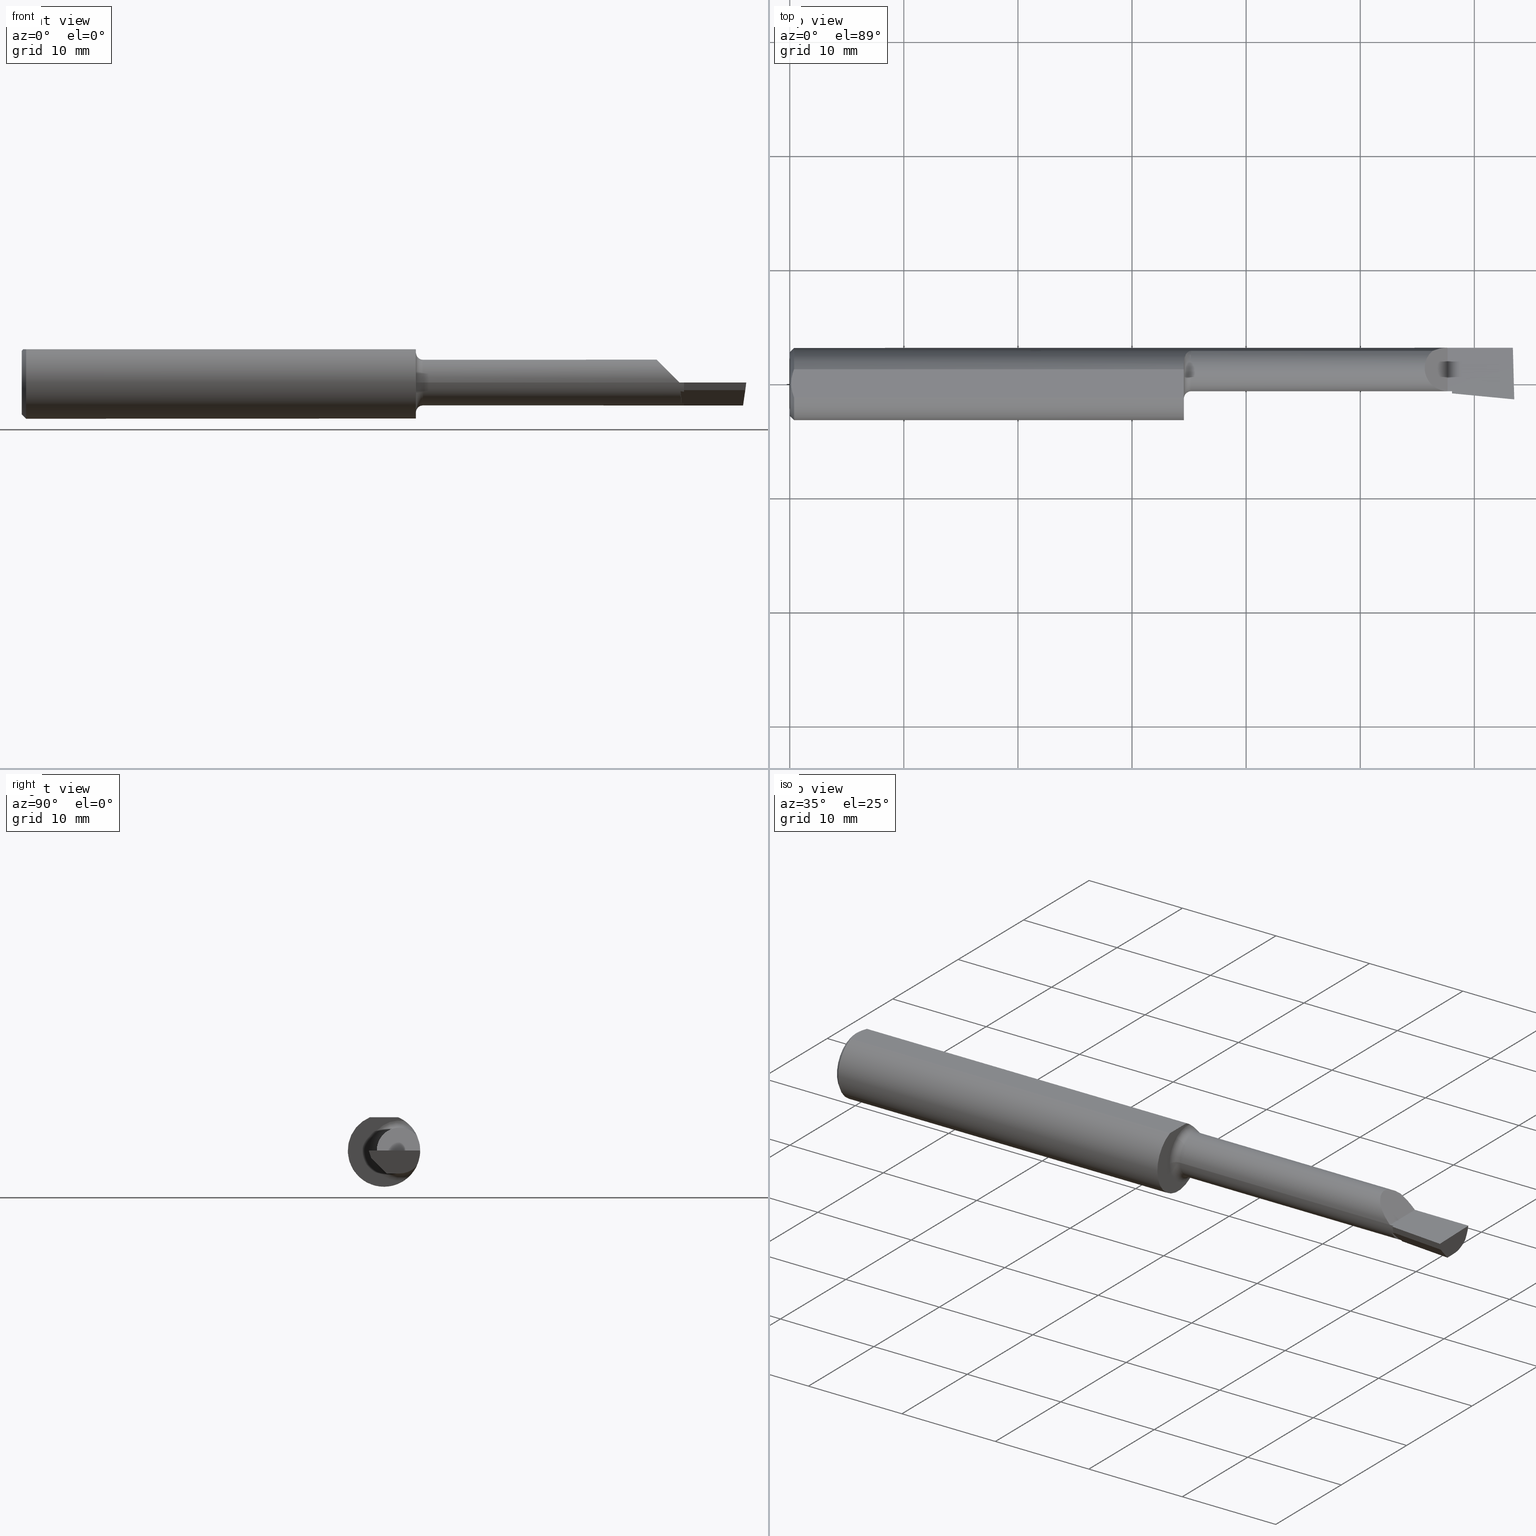
[diagram: canonical four-view strip — front | top / right | iso, engineering-drawing reading convention]
A machine part, canonical four-view strip (front | top / right | iso — engineering-drawing reading convention). The complete STEP part file that produces these views, byte-faithful:
ISO-10303-21;
HEADER;
FILE_DESCRIPTION (( 'STEP AP203' ),
    '1' );
FILE_NAME ('211944-LHB1801100.STEP',
    '2024-08-23T17:10:07',
    ( '' ),
    ( '' ),
    'SwSTEP 2.0',
    'SolidWorks 2024',
    '' );
FILE_SCHEMA (( 'CONFIG_CONTROL_DESIGN' ));
ENDSEC;

DATA;
#1 = CARTESIAN_POINT ( 'NONE',  ( 4.111069666048746882E-31, 0.1248499999999999888, 9.802154982235641300E-16 ) ) ;
#2 = VERTEX_POINT ( 'NONE', #618 ) ;
#3 = AXIS2_PLACEMENT_3D ( 'NONE', #153, #365, #449 ) ;
#4 = EDGE_CURVE ( 'NONE', #286, #134, #345, .T. ) ;
#5 = CARTESIAN_POINT ( 'NONE',  ( 2.487758143022276158, 0.05399999999999998551, -0.07915000000000001201 ) ) ;
#6 = ADVANCED_FACE ( 'NONE', ( #511 ), #148, .F. ) ;
#7 = VERTEX_POINT ( 'NONE', #674 ) ;
#8 = CARTESIAN_POINT ( 'NONE',  ( -2.702822108727469846E-19, -0.02515000000000001262, 9.802154982235641300E-16 ) ) ;
#9 = VECTOR ( 'NONE', #151, 39.37007874015748143 ) ;
#10 = FACE_OUTER_BOUND ( 'NONE', #567, .T. ) ;
#11 = ORIENTED_EDGE ( 'NONE', *, *, #61, .T. ) ;
#12 = DIRECTION ( 'NONE',  ( -0.000000000000000000, 1.000000000000000000, -0.000000000000000000 ) ) ;
#13 = APPROVAL_PERSON_ORGANIZATION ( #473, #537, #432 ) ;
#14 = DIRECTION ( 'NONE',  ( -1.000000000000000000, 3.414809992080329023E-18, -0.000000000000000000 ) ) ;
#15 = VERTEX_POINT ( 'NONE', #556 ) ;
#16 = VERTEX_POINT ( 'NONE', #621 ) ;
#17 = DIRECTION ( 'NONE',  ( 0.09140971883575743639, 0.9493262270931230873, 0.3007057995042730081 ) ) ;
#18 = B_SPLINE_CURVE_WITH_KNOTS ( 'NONE', 3,
 ( #198, #409, #506, #413, #630, #292, #360, #243, #140, #91, #249, #573, #352, #27 ),
 .UNSPECIFIED., .F., .F.,
 ( 4, 2, 2, 2, 2, 2, 4 ),
 ( 6.218642020841400790E-05, 0.0005341583913332120011, 0.001006130362458009832, 0.001478102333582808747, 0.001714088319145203433, 0.001832081311926394163, 0.001950074304707585110 ),
 .UNSPECIFIED. ) ;
#19 = DIRECTION ( 'NONE',  ( -1.000000000000000000, 3.414809992080329023E-18, -0.000000000000000000 ) ) ;
#20 = CARTESIAN_POINT ( 'NONE',  ( 2.273959837147569552, -0.01141125714284146192, -0.04927684878934050772 ) ) ;
#21 = ORIENTED_EDGE ( 'NONE', *, *, #661, .T. ) ;
#22 = CARTESIAN_POINT ( 'NONE',  ( 2.285000000000000142, -0.04621187679337921544, -0.003716002006967718003 ) ) ;
#23 = LINE ( 'NONE', #191, #422 ) ;
#24 = VECTOR ( 'NONE', #313, 39.37007874015748143 ) ;
#25 = ORIENTED_EDGE ( 'NONE', *, *, #486, .T. ) ;
#26 = APPROVAL ( #485, 'UNSPECIFIED' ) ;
#27 = CARTESIAN_POINT ( 'NONE',  ( 1.385000000000000009, 0.1133222222222218939, 0.05239843939104803922 ) ) ;
#28 = EDGE_CURVE ( 'NONE', #681, #673, #18, .T. ) ;
#29 = CARTESIAN_POINT ( 'NONE',  ( 2.487766922320267415, 0.05367228391204859755, -0.07915000000000001201 ) ) ;
#30 = ORIENTED_EDGE ( 'NONE', *, *, #580, .T. ) ;
#31 = CARTESIAN_POINT ( 'NONE',  ( 1.385000000000000009, 0.05399999999999999939, 0.000000000000000000 ) ) ;
#32 = DIRECTION ( 'NONE',  ( -3.414809992080329408E-18, -1.000000000000000000, 1.432187289346423802E-33 ) ) ;
#33 = CARTESIAN_POINT ( 'NONE',  ( 1.360000000000000320, 0.05399999999999999245, 0.000000000000000000 ) ) ;
#34 = EDGE_CURVE ( 'NONE', #436, #359, #564, .T. ) ;
#35 = ORIENTED_EDGE ( 'NONE', *, *, #502, .F. ) ;
#36 = CARTESIAN_POINT ( 'NONE',  ( 2.285000000000000142, -0.02515000000000000221, 0.000000000000000000 ) ) ;
#37 = VECTOR ( 'NONE', #503, 39.37007874015748854 ) ;
#38 = CARTESIAN_POINT ( 'NONE',  ( 1.385000000000000009, 0.1133222222222218939, 0.05239843939104803922 ) ) ;
#39 = CARTESIAN_POINT ( 'NONE',  ( 2.495569187478606121, 0.007984252577679214202, -0.07914999999999999813 ) ) ;
#40 = ADVANCED_FACE ( 'NONE', ( #246 ), #185, .T. ) ;
#41 = ORIENTED_EDGE ( 'NONE', *, *, #650, .T. ) ;
#42 = DIRECTION ( 'NONE',  ( 3.414809992080329023E-18, 1.000000000000000000, 0.000000000000000000 ) ) ;
#43 =( CONVERSION_BASED_UNIT ( 'INCH', #410 ) LENGTH_UNIT ( ) NAMED_UNIT ( #164 ) );
#44 = CARTESIAN_POINT ( 'NONE',  ( 0.005000000000000195260, 0.008410227287019752737, 0.1148500000000000215 ) ) ;
#45 = ADVANCED_FACE ( 'NONE', ( #672 ), #419, .F. ) ;
#46 = VECTOR ( 'NONE', #646, 39.37007874015748143 ) ;
#47 = CARTESIAN_POINT ( 'NONE',  ( 2.450892313306104686, -0.05443593003221099125, -0.4150509775379229160 ) ) ;
#48 = APPROVAL_ROLE ( '' ) ;
#49 = CARTESIAN_POINT ( 'NONE',  ( 2.500000000000000000, 0.05399999999999998551, -0.07915000000000001201 ) ) ;
#50 = DIRECTION ( 'NONE',  ( 0.000000000000000000, 1.000000000000000000, -4.882484975808304553E-17 ) ) ;
#51 = PERSON_AND_ORGANIZATION_ROLE ( 'creator' ) ;
#52 = CARTESIAN_POINT ( 'NONE',  ( 2.285000000000000142, -0.04244785463752932114, 0.000000000000000000 ) ) ;
#53 = PERSON_AND_ORGANIZATION_ROLE ( 'classification_officer' ) ;
#54 =( BOUNDED_CURVE ( )  B_SPLINE_CURVE ( 3, ( #335, #487, #657, #386 ),
 .UNSPECIFIED., .F., .T. ) 
 B_SPLINE_CURVE_WITH_KNOTS ( ( 4, 4 ),
 ( 2.748591085287169111, 2.776193934836911570 ),
 .UNSPECIFIED. ) 
 CURVE ( )  GEOMETRIC_REPRESENTATION_ITEM ( )  RATIONAL_B_SPLINE_CURVE ( ( 1.000000000000000000, 0.9999365078992319411, 0.9999365078992319411, 1.000000000000000000 ) ) 
 REPRESENTATION_ITEM ( '' )  );
#55 = EDGE_CURVE ( 'NONE', #330, #458, #589, .T. ) ;
#56 = CARTESIAN_POINT ( 'NONE',  ( 0.01499999999999999424, 0.000000000000000000, 0.000000000000000000 ) ) ;
#57 =( BOUNDED_CURVE ( )  B_SPLINE_CURVE ( 3, ( #155, #366, #581, #173 ),
 .UNSPECIFIED., .F., .F. ) 
 B_SPLINE_CURVE_WITH_KNOTS ( ( 4, 4 ),
 ( 5.658406471906769042, 6.505699533271600110 ),
 .UNSPECIFIED. ) 
 CURVE ( )  GEOMETRIC_REPRESENTATION_ITEM ( )  RATIONAL_B_SPLINE_CURVE ( ( 1.000000000000000000, 0.9410639745696128822, 0.9410639745696128822, 1.000000000000000000 ) ) 
 REPRESENTATION_ITEM ( '' )  );
#58 = AXIS2_PLACEMENT_3D ( 'NONE', #396, #613, #676 ) ;
#59 = CARTESIAN_POINT ( 'NONE',  ( 1.834999999999999964, 0.1133222222222221853, 0.05239843939104762288 ) ) ;
#60 = EDGE_LOOP ( 'NONE', ( #649, #169, #276, #544 ) ) ;
#61 = EDGE_CURVE ( 'NONE', #130, #681, #597, .T. ) ;
#62 = DIRECTION ( 'NONE',  ( 1.000000000000000000, -3.414809992080329023E-18, 0.000000000000000000 ) ) ;
#63 = ORIENTED_EDGE ( 'NONE', *, *, #687, .T. ) ;
#64 = DIRECTION ( 'NONE',  ( 1.000000000000000000, -3.414809992080329023E-18, 0.000000000000000000 ) ) ;
#65 = MANIFOLD_SOLID_BREP ( 'Extrude7', #372 ) ;
#66 = EDGE_LOOP ( 'NONE', ( #404, #118, #633, #629, #343 ) ) ;
#67 = FACE_OUTER_BOUND ( 'NONE', #384, .T. ) ;
#68 = VECTOR ( 'NONE', #601, 39.37007874015748143 ) ;
#69 = VECTOR ( 'NONE', #448, 39.37007874015748854 ) ;
#70 = CARTESIAN_POINT ( 'NONE',  ( 2.272839991865825748, -0.02304129506207100789, -0.02600000000000006126 ) ) ;
#71 = ORIENTED_EDGE ( 'NONE', *, *, #4, .F. ) ;
#72 = LOCAL_TIME ( 10, 10, 7.000000000000000000, #322 ) ;
#73 = CARTESIAN_POINT ( 'NONE',  ( 2.285000000000000142, 0.05399999999999998551, -0.07914999999999999813 ) ) ;
#74 = ORIENTED_EDGE ( 'NONE', *, *, #277, .F. ) ;
#75 = AXIS2_PLACEMENT_3D ( 'NONE', #390, #379, #117 ) ;
#76 = ORIENTED_EDGE ( 'NONE', *, *, #356, .F. ) ;
#77 = CARTESIAN_POINT ( 'NONE',  ( 1.366709462345916393, 0.1014961360546397240, -0.07295290821911747103 ) ) ;
#78 = DIRECTION ( 'NONE',  ( -0.7071067811865432429, 0.000000000000000000, -0.7071067811865517916 ) ) ;
#79 = PRODUCT_RELATED_PRODUCT_CATEGORY ( 'detail', '', ( #219 ) ) ;
#80 = ORIENTED_EDGE ( 'NONE', *, *, #176, .F. ) ;
#81 = CIRCLE ( 'NONE', #263, 0.1098499999999996424 ) ;
#82 = FACE_OUTER_BOUND ( 'NONE', #444, .T. ) ;
#83 = MECHANICAL_CONTEXT ( 'NONE', #165, 'mechanical' ) ;
#84 = ORIENTED_EDGE ( 'NONE', *, *, #85, .T. ) ;
#85 = EDGE_CURVE ( 'NONE', #178, #340, #532, .T. ) ;
#86 = APPROVAL_STATUS ( 'not_yet_approved' ) ;
#87 = VERTEX_POINT ( 'NONE', #36 ) ;
#88 = DIRECTION ( 'NONE',  ( -3.414809992080329408E-18, -1.000000000000000000, 0.000000000000000000 ) ) ;
#89 = CARTESIAN_POINT ( 'NONE',  ( 0.01499999999999999424, 1.528971528735470422E-17, 0.1248500000000000026 ) ) ;
#90 = ORIENTED_EDGE ( 'NONE', *, *, #502, .T. ) ;
#91 = CARTESIAN_POINT ( 'NONE',  ( 1.378003366130775342, 0.1118869025553485413, 0.05540929543234639210 ) ) ;
#92 = APPLICATION_CONTEXT ( 'configuration controlled 3d designs of mechanical parts and assemblies' ) ;
#93 = CARTESIAN_POINT ( 'NONE',  ( 0.000000000000000000, 0.000000000000000000, 0.000000000000000000 ) ) ;
#94 = CIRCLE ( 'NONE', #183, 0.1041500000000001036 ) ;
#95 = B_SPLINE_CURVE_WITH_KNOTS ( 'NONE', 3,
 ( #696, #265, #369, #428, #468, #584 ),
 .UNSPECIFIED., .F., .F.,
 ( 4, 2, 4 ),
 ( 0.001029394377391489035, 0.001663875367397493060, 0.002298356357403497086 ),
 .UNSPECIFIED. ) ;
#96 = DIRECTION ( 'NONE',  ( 0.7071067811865390240, 0.000000000000000000, -0.7071067811865560104 ) ) ;
#97 = ORIENTED_EDGE ( 'NONE', *, *, #531, .T. ) ;
#98 = CARTESIAN_POINT ( 'NONE',  ( 2.285000000000000142, 0.05399999999999998551, -0.07915000000000001201 ) ) ;
#99 = CARTESIAN_POINT ( 'NONE',  ( 2.285000000000000142, 0.02126251053591694806, -0.07206232915739714529 ) ) ;
#100 = FACE_OUTER_BOUND ( 'NONE', #60, .T. ) ;
#101 = VECTOR ( 'NONE', #328, 39.37007874015748854 ) ;
#102 = CARTESIAN_POINT ( 'NONE',  ( 2.285000000000000142, 0.05399999999999999245, 0.000000000000000000 ) ) ;
#103 = ADVANCED_FACE ( 'NONE', ( #82 ), #297, .F. ) ;
#104 = PLANE ( 'NONE',  #350 ) ;
#105 = VECTOR ( 'NONE', #262, 39.37007874015748143 ) ;
#106 = CARTESIAN_POINT ( 'NONE',  ( 2.273197635668314120, -0.01932702215997963296, -0.02979715290342114728 ) ) ;
#107 = CC_DESIGN_APPROVAL ( #671, ( #317 ) ) ;
#108 = DATE_AND_TIME ( #213, #626 ) ;
#109 = ADVANCED_FACE ( 'NONE', ( #481 ), #424, .F. ) ;
#110 = FACE_OUTER_BOUND ( 'NONE', #438, .T. ) ;
#111 = COORDINATED_UNIVERSAL_TIME_OFFSET ( 8, 0, .BEHIND. ) ;
#112 = CARTESIAN_POINT ( 'NONE',  ( 0.01499999999999999424, 0.000000000000000000, 0.000000000000000000 ) ) ;
#113 = ORIENTED_EDGE ( 'NONE', *, *, #631, .F. ) ;
#114 = DATE_TIME_ROLE ( 'classification_date' ) ;
#115 = EDGE_CURVE ( 'NONE', #467, #134, #667, .T. ) ;
#116 = AXIS2_PLACEMENT_3D ( 'NONE', #47, #266, #592 ) ;
#117 = DIRECTION ( 'NONE',  ( 3.414809992080329023E-18, 1.000000000000000000, 0.000000000000000000 ) ) ;
#118 = ORIENTED_EDGE ( 'NONE', *, *, #137, .T. ) ;
#119 = EDGE_LOOP ( 'NONE', ( #550, #407, #500, #332 ) ) ;
#120 = VECTOR ( 'NONE', #570, 39.37007874015748143 ) ;
#121 = DIRECTION ( 'NONE',  ( 0.000000000000000000, 0.000000000000000000, 1.000000000000000000 ) ) ;
#122 = ORIENTED_EDGE ( 'NONE', *, *, #315, .F. ) ;
#123 = DIRECTION ( 'NONE',  ( 1.000000000000000000, 0.000000000000000000, 0.000000000000000000 ) ) ;
#124 = LINE ( 'NONE', #59, #433 ) ;
#125 = ORIENTED_EDGE ( 'NONE', *, *, #333, .T. ) ;
#126 = VECTOR ( 'NONE', #96, 39.37007874015748143 ) ;
#127 = DIRECTION ( 'NONE',  ( -1.000000000000000000, -0.000000000000000000, -0.000000000000000000 ) ) ;
#128 = EDGE_LOOP ( 'NONE', ( #516, #311, #74, #237, #391, #195, #172, #71 ) ) ;
#129 = FACE_OUTER_BOUND ( 'NONE', #119, .T. ) ;
#130 = VERTEX_POINT ( 'NONE', #371 ) ;
#131 = CARTESIAN_POINT ( 'NONE',  ( 1.378018389903473695, 0.1118940578004063713, -0.05539504279880069076 ) ) ;
#132 = VECTOR ( 'NONE', #495, 39.37007874015748143 ) ;
#133 = FACE_OUTER_BOUND ( 'NONE', #510, .T. ) ;
#134 = VERTEX_POINT ( 'NONE', #576 ) ;
#135 = CARTESIAN_POINT ( 'NONE',  ( 1.363310246323733432, 0.09402499227299722373, -0.08235832246780973309 ) ) ;
#136 = DIRECTION ( 'NONE',  ( 1.000000000000000000, 0.000000000000000000, 0.000000000000000000 ) ) ;
#137 = EDGE_CURVE ( 'NONE', #653, #130, #478, .T. ) ;
#138 = ORIENTED_EDGE ( 'NONE', *, *, #509, .T. ) ;
#139 = AXIS2_PLACEMENT_3D ( 'NONE', #463, #19, #88 ) ;
#140 = CARTESIAN_POINT ( 'NONE',  ( 1.374891482046761704, 0.1103130882036812976, 0.05851436580809191851 ) ) ;
#141 = APPLICATION_PROTOCOL_DEFINITION ( 'international standard', 'config_control_design', 1994, #92 ) ;
#142 = VERTEX_POINT ( 'NONE', #106 ) ;
#143 = CARTESIAN_POINT ( 'NONE',  ( 1.379195140613335591, 0.1123729516825155567, -0.05441079362540626740 ) ) ;
#144 = EDGE_CURVE ( 'NONE', #602, #359, #316, .T. ) ;
#145 = COORDINATED_UNIVERSAL_TIME_OFFSET ( 8, 0, .BEHIND. ) ;
#146 = CARTESIAN_POINT ( 'NONE',  ( 2.489336331022029114, 0.1133222222222221853, -0.05239843939104762288 ) ) ;
#147 = EDGE_LOOP ( 'NONE', ( #513, #378, #351, #113, #620, #663 ) ) ;
#148 = PLANE ( 'NONE',  #622 ) ;
#149 = CARTESIAN_POINT ( 'NONE',  ( 1.385000000000000009, -0.05015000000000010422, 0.000000000000000000 ) ) ;
#150 = VERTEX_POINT ( 'NONE', #375 ) ;
#151 = DIRECTION ( 'NONE',  ( 0.1199690778467076002, -0.3102690083707247415, 0.9430485474275742686 ) ) ;
#152 = DIRECTION ( 'NONE',  ( 0.7071067811865390240, 8.659560562355036396E-17, 0.7071067811865560104 ) ) ;
#153 = CARTESIAN_POINT ( 'NONE',  ( 2.500000000000000000, -0.2500000000000000555, -6.829619984160658046E-17 ) ) ;
#154 = VECTOR ( 'NONE', #12, 39.37007874015748143 ) ;
#155 = CARTESIAN_POINT ( 'NONE',  ( 2.489336331022029114, 0.1133222222222221853, -0.05239843939104762288 ) ) ;
#156 = DIRECTION ( 'NONE',  ( -3.414809992080329408E-18, -1.000000000000000000, 0.000000000000000000 ) ) ;
#157 = LINE ( 'NONE', #383, #68 ) ;
#158 = ADVANCED_FACE ( 'NONE', ( #308 ), #212, .F. ) ;
#159 = PERSON_AND_ORGANIZATION_ROLE ( 'design_supplier' ) ;
#160 = LOCAL_TIME ( 10, 10, 7.000000000000000000, #111 ) ;
#161 = DIRECTION ( 'NONE',  ( -3.414809992080329023E-18, -1.000000000000000000, 0.000000000000000000 ) ) ;
#162 = ADVANCED_FACE ( 'NONE', ( #694 ), #426, .T. ) ;
#163 = DATE_AND_TIME ( #210, #591 ) ;
#164 = DIMENSIONAL_EXPONENTS ( 1.000000000000000000, 0.000000000000000000, 0.000000000000000000, 0.000000000000000000, 0.000000000000000000, 0.000000000000000000, 0.000000000000000000 ) ;
#165 = APPLICATION_CONTEXT ( 'configuration controlled 3d designs of mechanical parts and assemblies' ) ;
#166 = CIRCLE ( 'NONE', #258, 0.07915000000000009528 ) ;
#167 = CARTESIAN_POINT ( 'NONE',  ( 1.360000000000000320, 0.000000000000000000, 0.000000000000000000 ) ) ;
#168 = EDGE_CURVE ( 'NONE', #563, #16, #95, .T. ) ;
#169 = ORIENTED_EDGE ( 'NONE', *, *, #144, .T. ) ;
#170 = DIRECTION ( 'NONE',  ( 0.000000000000000000, -1.000000000000000000, 0.000000000000000000 ) ) ;
#171 = CC_DESIGN_PERSON_AND_ORGANIZATION_ASSIGNMENT ( #216, #159, ( #465 ) ) ;
#172 = ORIENTED_EDGE ( 'NONE', *, *, #661, .F. ) ;
#173 = CARTESIAN_POINT ( 'NONE',  ( 2.487758143022276158, 0.05399999999999998551, -0.07915000000000001201 ) ) ;
#174 = ORIENTED_EDGE ( 'NONE', *, *, #115, .F. ) ;
#175 = CARTESIAN_POINT ( 'NONE',  ( 2.496692433244797282, -0.04459583357914748136, -0.02600000000000006820 ) ) ;
#176 = EDGE_CURVE ( 'NONE', #286, #467, #634, .T. ) ;
#177 = CARTESIAN_POINT ( 'NONE',  ( 2.492810633592928315, -0.01783304102662870705, -0.05273003064282317381 ) ) ;
#178 = VERTEX_POINT ( 'NONE', #205 ) ;
#179 = LINE ( 'NONE', #177, #46 ) ;
#180 = ORIENTED_EDGE ( 'NONE', *, *, #531, .F. ) ;
#181 = ADVANCED_FACE ( 'NONE', ( #644 ), #418, .F. ) ;
#182 = CARTESIAN_POINT ( 'NONE',  ( 0.01499999999999999077, -0.04895916665957456004, 0.1148500000000000215 ) ) ;
#183 = AXIS2_PLACEMENT_3D ( 'NONE', #33, #358, #305 ) ;
#184 = ORIENTED_EDGE ( 'NONE', *, *, #333, .F. ) ;
#185 = CYLINDRICAL_SURFACE ( 'NONE', #139, 0.07915000000000002589 ) ;
#186 = PLANE ( 'NONE',  #679 ) ;
#187 = EDGE_LOOP ( 'NONE', ( #431, #63, #227, #541, #204, #450, #605, #21, #30, #245, #41 ) ) ;
#188 = CARTESIAN_POINT ( 'NONE',  ( 2.270000000000000018, -0.02515000000000007160, 2.816687638038912303E-17 ) ) ;
#189 = ADVANCED_FACE ( 'NONE', ( #312 ), #104, .F. ) ;
#190 = AXIS2_PLACEMENT_3D ( 'NONE', #112, #430, #121 ) ;
#191 = CARTESIAN_POINT ( 'NONE',  ( -2.702822108731581707E-19, -0.02515000000000002997, 0.000000000000000000 ) ) ;
#192 = B_SPLINE_CURVE_WITH_KNOTS ( 'NONE', 3,
 ( #474, #44, #574, #680, #342, #289 ),
 .UNSPECIFIED., .F., .F.,
 ( 4, 2, 4 ),
 ( 0.002298356357403497086, 0.002932796277434359007, 0.003567236197465221362 ),
 .UNSPECIFIED. ) ;
#193 = ORIENTED_EDGE ( 'NONE', *, *, #315, .T. ) ;
#194 = CARTESIAN_POINT ( 'NONE',  ( 2.518780375369936486, -0.05495834446916381122, -7.617277714937992982E-17 ) ) ;
#195 = ORIENTED_EDGE ( 'NONE', *, *, #548, .F. ) ;
#196 = AXIS2_PLACEMENT_3D ( 'NONE', #640, #472, #156 ) ;
#197 = VECTOR ( 'NONE', #64, 39.37007874015748143 ) ;
#198 = CARTESIAN_POINT ( 'NONE',  ( 1.360000000000000320, 0.07089166666666647798, 0.1027710761704004605 ) ) ;
#199 = CARTESIAN_POINT ( 'NONE',  ( 2.495231497323687986, 0.1248499999999998639, -6.635442975774731131E-17 ) ) ;
#200 = ORIENTED_EDGE ( 'NONE', *, *, #687, .F. ) ;
#201 = CARTESIAN_POINT ( 'NONE',  ( 1.374878942730255460, 0.1103076286869486416, -0.05852540734030661079 ) ) ;
#202 = CIRCLE ( 'NONE', #285, 0.1098499999999996424 ) ;
#203 = CARTESIAN_POINT ( 'NONE',  ( 2.270000000000000018, -0.02515000000000007160, 2.816687638038912303E-17 ) ) ;
#204 = ORIENTED_EDGE ( 'NONE', *, *, #233, .T. ) ;
#205 = CARTESIAN_POINT ( 'NONE',  ( 1.385000000000000009, 0.1133222222222218800, -0.05239843939104806697 ) ) ;
#206 = LINE ( 'NONE', #304, #327 ) ;
#207 = LINE ( 'NONE', #475, #677 ) ;
#208 = CC_DESIGN_PERSON_AND_ORGANIZATION_ASSIGNMENT ( #645, #53, ( #425 ) ) ;
#209 = AXIS2_PLACEMENT_3D ( 'NONE', #52, #362, #42 ) ;
#210 = CALENDAR_DATE ( 2024, 23, 8 ) ;
#211 = PLANE ( 'NONE',  #392 ) ;
#212 = PLANE ( 'NONE',  #209 ) ;
#213 = CALENDAR_DATE ( 2024, 23, 8 ) ;
#214 = EDGE_CURVE ( 'NONE', #572, #248, #81, .T. ) ;
#215 = DIRECTION ( 'NONE',  ( 0.000000000000000000, -4.882484975808304553E-17, -1.000000000000000000 ) ) ;
#216 = PERSON_AND_ORGANIZATION ( #242, #353 ) ;
#217 = DIRECTION ( 'NONE',  ( 3.414809992080329023E-18, 1.000000000000000000, -4.882484975808304553E-17 ) ) ;
#218 = CIRCLE ( 'NONE', #484, 0.02499999999999986955 ) ;
#219 = PRODUCT ( '211944-LHB1801100', '211944-LHB1801100', '', ( #83 ) ) ;
#220 = FACE_OUTER_BOUND ( 'NONE', #147, .T. ) ;
#221 = VERTEX_POINT ( 'NONE', #526 ) ;
#222 = CONICAL_SURFACE ( 'NONE', #400, 0.1248500000000000026, 0.7853981633974602694 ) ;
#223 = CARTESIAN_POINT ( 'NONE',  ( 2.285000000000000142, -0.03335971367006557858, 0.002878732955684627087 ) ) ;
#224 = VERTEX_POINT ( 'NONE', #321 ) ;
#225 = CARTESIAN_POINT ( 'NONE',  ( 0.01499999999999999424, 0.000000000000000000, 0.000000000000000000 ) ) ;
#226 = DIRECTION ( 'NONE',  ( 0.9953961983671787417, -0.09584575252022421721, -0.000000000000000000 ) ) ;
#227 = ORIENTED_EDGE ( 'NONE', *, *, #364, .F. ) ;
#228 = ORIENTED_EDGE ( 'NONE', *, *, #168, .T. ) ;
#229 = EDGE_CURVE ( 'NONE', #241, #467, #207, .T. ) ;
#230 = CARTESIAN_POINT ( 'NONE',  ( 0.000000000000000000, 0.000000000000000000, -0.1098499999999996424 ) ) ;
#231 = CARTESIAN_POINT ( 'NONE',  ( 0.000000000000000000, 0.000000000000000000, 0.000000000000000000 ) ) ;
#232 = ORIENTED_EDGE ( 'NONE', *, *, #233, .F. ) ;
#233 = EDGE_CURVE ( 'NONE', #221, #241, #57, .T. ) ;
#234 = LINE ( 'NONE', #70, #582 ) ;
#235 = ORIENTED_EDGE ( 'NONE', *, *, #28, .F. ) ;
#236 = CARTESIAN_POINT ( 'NONE',  ( 1.385000000000000009, 0.05399999999999999939, 0.000000000000000000 ) ) ;
#237 = ORIENTED_EDGE ( 'NONE', *, *, #569, .F. ) ;
#238 = CARTESIAN_POINT ( 'NONE',  ( 2.288286718689819477, 0.1373790965935234309, -0.1900000000000011402 ) ) ;
#239 = DIRECTION ( 'NONE',  ( 1.000000000000000000, 0.000000000000000000, 0.000000000000000000 ) ) ;
#240 = EDGE_CURVE ( 'NONE', #359, #595, #157, .T. ) ;
#241 = VERTEX_POINT ( 'NONE', #5 ) ;
#242 = PERSON ( 'UNSPECIFIED', 'UNSPECIFIED', 'UNSPECIFIED', ('UNSPECIFIED'), ('UNSPECIFIED'), ('UNSPECIFIED') ) ;
#243 = CARTESIAN_POINT ( 'NONE',  ( 1.373217602974939444, 0.1090277136498275096, 0.06089509507572603980 ) ) ;
#244 = CARTESIAN_POINT ( 'NONE',  ( 1.834999999999999964, 0.1133222222222221853, -0.05239843939104762288 ) ) ;
#245 = ORIENTED_EDGE ( 'NONE', *, *, #370, .T. ) ;
#246 = FACE_OUTER_BOUND ( 'NONE', #675, .T. ) ;
#247 = CARTESIAN_POINT ( 'NONE',  ( 2.277233991773410793, 0.02259213874828995897, -0.07265169476064090026 ) ) ;
#248 = VERTEX_POINT ( 'NONE', #490 ) ;
#249 = CARTESIAN_POINT ( 'NONE',  ( 1.379156347344548506, 0.1123603976562047441, 0.05443691454869414859 ) ) ;
#250 = CARTESIAN_POINT ( 'NONE',  ( 2.279883121630959408, 0.02214713058057739964, -0.07245931446127634734 ) ) ;
#251 = CARTESIAN_POINT ( 'NONE',  ( 2.491084417918584037, 0.1209466293052442742, -0.03590911711702338832 ) ) ;
#252 = ORIENTED_EDGE ( 'NONE', *, *, #403, .T. ) ;
#253 = CIRCLE ( 'NONE', #643, 0.1248500000000000026 ) ;
#254 = DIRECTION ( 'NONE',  ( -0.09584575252022489722, -0.9953961983671786307, 0.000000000000000000 ) ) ;
#255 = DIRECTION ( 'NONE',  ( -1.000000000000000000, 3.414809992080329023E-18, -0.000000000000000000 ) ) ;
#256 = EDGE_LOOP ( 'NONE', ( #272, #97, #380, #235 ) ) ;
#257 = CARTESIAN_POINT ( 'NONE',  ( 1.360000000000000320, 0.1748500000000000054, 0.1148500000000000076 ) ) ;
#258 = AXIS2_PLACEMENT_3D ( 'NONE', #499, #434, #437 ) ;
#259 = CARTESIAN_POINT ( 'NONE',  ( 0.01499999999999999424, 0.000000000000000000, -0.1248500000000000026 ) ) ;
#260 = CARTESIAN_POINT ( 'NONE',  ( 1.360000000000000320, -0.05015000000000010422, 0.000000000000000000 ) ) ;
#261 = EDGE_CURVE ( 'NONE', #2, #563, #489, .T. ) ;
#262 = DIRECTION ( 'NONE',  ( -0.000000000000000000, 1.000000000000000000, -3.641097456210760683E-16 ) ) ;
#263 = AXIS2_PLACEMENT_3D ( 'NONE', #641, #318, #692 ) ;
#264 = SHAPE_DEFINITION_REPRESENTATION ( #493, #690 ) ;
#265 = CARTESIAN_POINT ( 'NONE',  ( 0.01195732443765552995, -0.04120008761723500251, 0.1148500000000000215 ) ) ;
#266 = DIRECTION ( 'NONE',  ( -0.9927123040216839778, -0.02659410830638217135, 0.1175373763844853731 ) ) ;
#267 = PERSON_AND_ORGANIZATION ( #242, #353 ) ;
#268 = FACE_OUTER_BOUND ( 'NONE', #575, .T. ) ;
#269 = DIRECTION ( 'NONE',  ( 0.000000000000000000, -1.000000000000000000, 0.000000000000000000 ) ) ;
#270 = ORIENTED_EDGE ( 'NONE', *, *, #656, .F. ) ;
#271 = LINE ( 'NONE', #1, #132 ) ;
#272 = ORIENTED_EDGE ( 'NONE', *, *, #509, .F. ) ;
#273 = EDGE_LOOP ( 'NONE', ( #555, #329 ) ) ;
#274 = CARTESIAN_POINT ( 'NONE',  ( 2.495231497323687986, 0.1248499999999998639, -6.635442975774731131E-17 ) ) ;
#275 = CARTESIAN_POINT ( 'NONE',  ( 1.385000000000000009, 0.05399999999999999245, 0.000000000000000000 ) ) ;
#276 = ORIENTED_EDGE ( 'NONE', *, *, #34, .F. ) ;
#277 = EDGE_CURVE ( 'NONE', #658, #602, #234, .T. ) ;
#278 = VECTOR ( 'NONE', #217, 39.37007874015748143 ) ;
#279 = VECTOR ( 'NONE', #603, 39.37007874015748143 ) ;
#280 = CARTESIAN_POINT ( 'NONE',  ( 2.217601560608951861, 0.1133222222222222408, 0.05239843939104755349 ) ) ;
#281 = ORIENTED_EDGE ( 'NONE', *, *, #364, .T. ) ;
#282 = ORIENTED_EDGE ( 'NONE', *, *, #137, .F. ) ;
#283 = APPROVAL_PERSON_ORGANIZATION ( #566, #671, #301 ) ;
#284 = DIRECTION ( 'NONE',  ( -1.000000000000000000, 0.000000000000000000, 0.000000000000000000 ) ) ;
#285 = AXIS2_PLACEMENT_3D ( 'NONE', #231, #543, #648 ) ;
#286 = VERTEX_POINT ( 'NONE', #325 ) ;
#287 = DIRECTION ( 'NONE',  ( 0.000000000000000000, 0.000000000000000000, -1.000000000000000000 ) ) ;
#288 = EDGE_CURVE ( 'NONE', #658, #436, #652, .T. ) ;
#289 = CARTESIAN_POINT ( 'NONE',  ( 0.01499999999999999424, 0.04895916665957457392, 0.1148500000000000076 ) ) ;
#290 = ORIENTED_EDGE ( 'NONE', *, *, #240, .F. ) ;
#291 = DESIGN_CONTEXT ( 'detailed design', #92, 'design' ) ;
#292 = CARTESIAN_POINT ( 'NONE',  ( 1.366702553529778097, 0.1014824713796362576, 0.07297083456247581423 ) ) ;
#293 = CARTESIAN_POINT ( 'NONE',  ( 2.275375585052592076, 0.003291847016187856700, -0.06430803688952695107 ) ) ;
#294 = CC_DESIGN_PERSON_AND_ORGANIZATION_ASSIGNMENT ( #367, #51, ( #465 ) ) ;
#295 = AXIS2_PLACEMENT_3D ( 'NONE', #420, #215, #50 ) ;
#296 = ORIENTED_EDGE ( 'NONE', *, *, #214, .T. ) ;
#297 = PLANE ( 'NONE',  #439 ) ;
#298 = DIRECTION ( 'NONE',  ( 0.02677973311239245993, -0.9996413586354002678, 3.634677723728517683E-16 ) ) ;
#299 = ORIENTED_EDGE ( 'NONE', *, *, #55, .F. ) ;
#300 = DIRECTION ( 'NONE',  ( -1.000000000000000000, 3.414809992080329023E-18, -0.000000000000000000 ) ) ;
#301 = APPROVAL_ROLE ( '' ) ;
#302 = EDGE_LOOP ( 'NONE', ( #492, #452, #670 ) ) ;
#303 = CARTESIAN_POINT ( 'NONE',  ( 1.362089430766777909, 0.08992021952243373084, -0.08683155323701839678 ) ) ;
#304 = CARTESIAN_POINT ( 'NONE',  ( 2.285000000000000142, -0.2500000000000000555, 2.187580619199813988E-17 ) ) ;
#305 = DIRECTION ( 'NONE',  ( 0.000000000000000000, -1.000000000000000000, 0.000000000000000000 ) ) ;
#306 = ADVANCED_FACE ( 'NONE', ( #10 ), #222, .T. ) ;
#307 = ORIENTED_EDGE ( 'NONE', *, *, #337, .T. ) ;
#308 = FACE_OUTER_BOUND ( 'NONE', #491, .T. ) ;
#309 = CARTESIAN_POINT ( 'NONE',  ( 1.360000000000000320, -0.04895916665957464331, 0.1148500000000000215 ) ) ;
#310 = EDGE_CURVE ( 'NONE', #7, #602, #179, .T. ) ;
#311 = ORIENTED_EDGE ( 'NONE', *, *, #310, .T. ) ;
#312 = FACE_OUTER_BOUND ( 'NONE', #128, .T. ) ;
#313 = DIRECTION ( 'NONE',  ( -1.000000000000000000, 3.414809992080329023E-18, -0.000000000000000000 ) ) ;
#314 = CARTESIAN_POINT ( 'NONE',  ( 2.272839991865825748, -0.02304129506207100789, -0.02600000000000006126 ) ) ;
#315 = EDGE_CURVE ( 'NONE', #673, #330, #124, .T. ) ;
#316 = LINE ( 'NONE', #688, #9 ) ;
#317 = PRODUCT_DEFINITION ( 'UNKNOWN', '', #465, #291 ) ;
#318 = DIRECTION ( 'NONE',  ( -1.000000000000000000, -0.000000000000000000, -0.000000000000000000 ) ) ;
#319 = AXIS2_PLACEMENT_3D ( 'NONE', #31, #300, #683 ) ;
#320 = APPROVAL_STATUS ( 'not_yet_approved' ) ;
#321 = CARTESIAN_POINT ( 'NONE',  ( 1.360000000000000320, -0.05015000000000011116, 0.000000000000000000 ) ) ;
#322 = COORDINATED_UNIVERSAL_TIME_OFFSET ( 8, 0, .BEHIND. ) ;
#323 = CYLINDRICAL_SURFACE ( 'NONE', #469, 0.1248500000000000026 ) ;
#324 = APPROVAL_DATE_TIME ( #697, #26 ) ;
#325 = CARTESIAN_POINT ( 'NONE',  ( 2.285000000000000142, 0.02825975921972332522, -0.07914999999999999813 ) ) ;
#326 = VERTEX_POINT ( 'NONE', #535 ) ;
#327 = VECTOR ( 'NONE', #32, 39.37007874015748143 ) ;
#328 = DIRECTION ( 'NONE',  ( -1.031170299700828206E-18, -0.3019700370129909106, 0.9533174165755983198 ) ) ;
#329 = ORIENTED_EDGE ( 'NONE', *, *, #580, .F. ) ;
#330 = VERTEX_POINT ( 'NONE', #280 ) ;
#331 = DIRECTION ( 'NONE',  ( 1.000000000000000000, 0.000000000000000000, 0.000000000000000000 ) ) ;
#332 = ORIENTED_EDGE ( 'NONE', *, *, #176, .T. ) ;
#333 = EDGE_CURVE ( 'NONE', #248, #572, #202, .T. ) ;
#334 = CARTESIAN_POINT ( 'NONE',  ( 2.234090882882976192, 0.1209466293052442742, 0.03590911711702333281 ) ) ;
#335 = CARTESIAN_POINT ( 'NONE',  ( 2.273197635668314120, -0.01932702215997963296, -0.02979715290342114728 ) ) ;
#336 = ORIENTED_EDGE ( 'NONE', *, *, #639, .F. ) ;
#337 = EDGE_CURVE ( 'NONE', #340, #653, #685, .T. ) ;
#338 = AXIS2_PLACEMENT_3D ( 'NONE', #236, #255, #466 ) ;
#339 = CARTESIAN_POINT ( 'NONE',  ( 2.493080554539725657, 0.1248500000000000165, -0.01816670945505174245 ) ) ;
#340 = VERTEX_POINT ( 'NONE', #593 ) ;
#341 = CARTESIAN_POINT ( 'NONE',  ( 0.01499999999999999424, 0.04895916665957457392, 0.1148500000000000076 ) ) ;
#342 = CARTESIAN_POINT ( 'NONE',  ( 0.01193974418109659645, 0.04115525648180389656, 0.1148500000000000076 ) ) ;
#343 = ORIENTED_EDGE ( 'NONE', *, *, #168, .F. ) ;
#344 = AXIS2_PLACEMENT_3D ( 'NONE', #275, #443, #269 ) ;
#345 = LINE ( 'NONE', #22, #525 ) ;
#346 = CARTESIAN_POINT ( 'NONE',  ( 0.01499999999999999424, 0.000000000000000000, 0.000000000000000000 ) ) ;
#347 = ORIENTED_EDGE ( 'NONE', *, *, #650, .F. ) ;
#348 = DIRECTION ( 'NONE',  ( -0.9953961983671787417, 0.09584575252022491110, 7.782841398429718787E-17 ) ) ;
#349 = LINE ( 'NONE', #619, #120 ) ;
#350 = AXIS2_PLACEMENT_3D ( 'NONE', #522, #587, #636 ) ;
#351 = ORIENTED_EDGE ( 'NONE', *, *, #381, .F. ) ;
#352 = CARTESIAN_POINT ( 'NONE',  ( 1.383393805215130223, 0.1133222222232594112, 0.05239843938880466706 ) ) ;
#353 = ORGANIZATION ( 'UNSPECIFIED', 'UNSPECIFIED', '' ) ;
#354 = VERTEX_POINT ( 'NONE', #539 ) ;
#355 = CARTESIAN_POINT ( 'NONE',  ( 1.373205018706407099, 0.1090156405642967868, -0.06091562844815698319 ) ) ;
#356 = EDGE_CURVE ( 'NONE', #354, #673, #166, .T. ) ;
#357 = CARTESIAN_POINT ( 'NONE',  ( 2.282471863881387009, 0.02170390870515553211, -0.07226285373221838504 ) ) ;
#358 = DIRECTION ( 'NONE',  ( -1.000000000000000000, 3.414809992080329023E-18, -0.000000000000000000 ) ) ;
#359 = VERTEX_POINT ( 'NONE', #660 ) ;
#360 = CARTESIAN_POINT ( 'NONE',  ( 1.368812999615358850, 0.1047986892473501408, 0.06808587976958131727 ) ) ;
#361 = ORIENTED_EDGE ( 'NONE', *, *, #144, .F. ) ;
#362 = DIRECTION ( 'NONE',  ( 1.000000000000000000, -3.414809992080329023E-18, 0.000000000000000000 ) ) ;
#363 = LINE ( 'NONE', #244, #24 ) ;
#364 = EDGE_CURVE ( 'NONE', #178, #354, #553, .T. ) ;
#365 = DIRECTION ( 'NONE',  ( -4.194046792260684025E-16, 0.000000000000000000, -1.000000000000000000 ) ) ;
#366 = CARTESIAN_POINT ( 'NONE',  ( 2.487699651873949147, 0.09806266089631178462, -0.06967435635555069284 ) ) ;
#367 = PERSON_AND_ORGANIZATION ( #242, #353 ) ;
#368 = CC_DESIGN_APPROVAL ( #26, ( #425 ) ) ;
#369 = CARTESIAN_POINT ( 'NONE',  ( 0.009415874254822530556, -0.03313958207962815899, 0.1148500000000000354 ) ) ;
#370 = EDGE_CURVE ( 'NONE', #142, #15, #54, .T. ) ;
#371 = CARTESIAN_POINT ( 'NONE',  ( 1.360000000000000320, 0.04895916665957456004, 0.1148500000000000076 ) ) ;
#372 = CLOSED_SHELL ( 'NONE', ( #162, #457, #306, #408, #583, #614, #414, #181, #423, #606, #45, #103, #158, #40, #435, #441, #6, #189, #109 ) ) ;
#373 = AXIS2_PLACEMENT_3D ( 'NONE', #615, #78, #508 ) ;
#374 = COORDINATED_UNIVERSAL_TIME_OFFSET ( 8, 0, .BEHIND. ) ;
#375 = CARTESIAN_POINT ( 'NONE',  ( 2.270000000000000018, 0.1248499999999998639, 2.816687638038912303E-17 ) ) ;
#376 = AXIS2_PLACEMENT_3D ( 'NONE', #167, #604, #377 ) ;
#377 = DIRECTION ( 'NONE',  ( 0.000000000000000000, -1.000000000000000000, 0.000000000000000000 ) ) ;
#378 = ORIENTED_EDGE ( 'NONE', *, *, #240, .T. ) ;
#379 = DIRECTION ( 'NONE',  ( 1.000000000000000000, -3.414809992080329023E-18, 0.000000000000000000 ) ) ;
#380 = ORIENTED_EDGE ( 'NONE', *, *, #356, .T. ) ;
#381 = EDGE_CURVE ( 'NONE', #150, #595, #271, .T. ) ;
#382 = CONICAL_SURFACE ( 'NONE', #453, 0.1248500000000000026, 0.7853981633974602694 ) ;
#383 = CARTESIAN_POINT ( 'NONE',  ( 2.505269699852777698, -0.2498588282143183736, -7.050633661797842283E-17 ) ) ;
#384 = EDGE_LOOP ( 'NONE', ( #519, #547, #25, #496, #228 ) ) ;
#385 = CARTESIAN_POINT ( 'NONE',  ( 2.272839991865825748, -0.02304129506207100789, -0.02600000000000006126 ) ) ;
#386 = CARTESIAN_POINT ( 'NONE',  ( 2.285000000000000142, -0.01847670748194148171, -0.03180957988683739274 ) ) ;
#387 = ORIENTED_EDGE ( 'NONE', *, *, #403, .F. ) ;
#388 =( BOUNDED_CURVE ( )  B_SPLINE_CURVE ( 3, ( #504, #293, #20, #445 ),
 .UNSPECIFIED., .F., .T. ) 
 B_SPLINE_CURVE_WITH_KNOTS ( ( 4, 4 ),
 ( 5.120432697754830009, 5.897208409155007658 ),
 .UNSPECIFIED. ) 
 CURVE ( )  GEOMETRIC_REPRESENTATION_ITEM ( )  RATIONAL_B_SPLINE_CURVE ( ( 1.000000000000000000, 0.9503471841698744038, 0.9503471841698744038, 1.000000000000000000 ) ) 
 REPRESENTATION_ITEM ( '' )  );
#389 = CARTESIAN_POINT ( 'NONE',  ( 2.285000000000000142, -0.04621187679337921544, -0.003716002006967718003 ) ) ;
#390 = CARTESIAN_POINT ( 'NONE',  ( 2.285000000000000142, -0.04244785463752932114, 0.000000000000000000 ) ) ;
#391 = ORIENTED_EDGE ( 'NONE', *, *, #370, .F. ) ;
#392 = AXIS2_PLACEMENT_3D ( 'NONE', #49, #393, #579 ) ;
#393 = DIRECTION ( 'NONE',  ( -0.000000000000000000, 3.641097456210760683E-16, 1.000000000000000000 ) ) ;
#394 = ORIENTED_EDGE ( 'NONE', *, *, #4, .T. ) ;
#395 = UNCERTAINTY_MEASURE_WITH_UNIT (LENGTH_MEASURE( 1.000000000000000082E-05 ), #43, 'distance_accuracy_value', 'NONE');
#396 = CARTESIAN_POINT ( 'NONE',  ( 1.360000000000000320, 0.000000000000000000, 0.000000000000000000 ) ) ;
#397 = PLANE ( 'NONE',  #373 ) ;
#398 =( BOUNDED_CURVE ( )  B_SPLINE_CURVE ( 3, ( #542, #334, #610, #659 ),
 .UNSPECIFIED., .F., .T. ) 
 B_SPLINE_CURVE_WITH_KNOTS ( ( 4, 4 ),
 ( 1.137691307532139984, 1.570796326794897668 ),
 .UNSPECIFIED. ) 
 CURVE ( )  GEOMETRIC_REPRESENTATION_ITEM ( )  RATIONAL_B_SPLINE_CURVE ( ( 1.000000000000000000, 0.9844293286710339430, 0.9844293286710339430, 1.000000000000000000 ) ) 
 REPRESENTATION_ITEM ( '' )  );
#399 = ORIENTED_EDGE ( 'NONE', *, *, #85, .F. ) ;
#400 = AXIS2_PLACEMENT_3D ( 'NONE', #56, #331, #446 ) ;
#401 = CARTESIAN_POINT ( 'NONE',  ( 1.381867218484672977, 0.1130881303947557509, -0.05290831216932034148 ) ) ;
#402 = DIRECTION ( 'NONE',  ( 0.000000000000000000, 0.000000000000000000, 1.000000000000000000 ) ) ;
#403 = EDGE_CURVE ( 'NONE', #340, #224, #523, .T. ) ;
#404 = ORIENTED_EDGE ( 'NONE', *, *, #480, .F. ) ;
#405 = CARTESIAN_POINT ( 'NONE',  ( 1.383397973893800703, 0.1133222222222220188, -0.05239843939104803228 ) ) ;
#406 = PERSON_AND_ORGANIZATION ( #242, #353 ) ;
#407 = ORIENTED_EDGE ( 'NONE', *, *, #639, .T. ) ;
#408 = ADVANCED_FACE ( 'NONE', ( #268 ), #483, .F. ) ;
#409 = CARTESIAN_POINT ( 'NONE',  ( 1.359999999999996989, 0.07604212793636061507, 0.09921827904968805178 ) ) ;
#410 = LENGTH_MEASURE_WITH_UNIT ( LENGTH_MEASURE( 0.02539999999999999897 ), #464 );
#411 = LOCAL_TIME ( 10, 10, 7.000000000000000000, #585 ) ;
#412 = ORIENTED_EDGE ( 'NONE', *, *, #381, .T. ) ;
#413 = CARTESIAN_POINT ( 'NONE',  ( 1.362066153268988833, 0.08982957272875664867, 0.08692514756739067039 ) ) ;
#414 = ADVANCED_FACE ( 'NONE', ( #110 ), #323, .T. ) ;
#415 = LINE ( 'NONE', #29, #538 ) ;
#416 = LINE ( 'NONE', #259, #126 ) ;
#417 = ORIENTED_EDGE ( 'NONE', *, *, #310, .F. ) ;
#418 = PLANE ( 'NONE',  #295 ) ;
#419 = TOROIDAL_SURFACE ( 'NONE', #319, 0.1041500000000001036, 0.02499999999999993894 ) ;
#420 = CARTESIAN_POINT ( 'NONE',  ( 2.500000000000000000, 0.1748500000000000054, 0.1148500000000000076 ) ) ;
#421 = CC_DESIGN_PERSON_AND_ORGANIZATION_ASSIGNMENT ( #642, #476, ( #317 ) ) ;
#422 = VECTOR ( 'NONE', #515, 39.37007874015748143 ) ;
#423 = ADVANCED_FACE ( 'NONE', ( #220 ), #665, .F. ) ;
#424 = PLANE ( 'NONE',  #116 ) ;
#425 = SECURITY_CLASSIFICATION ( '', '', #596 ) ;
#426 = CYLINDRICAL_SURFACE ( 'NONE', #196, 0.07915000000000002589 ) ;
#427 = APPROVAL_DATE_TIME ( #163, #671 ) ;
#428 = CARTESIAN_POINT ( 'NONE',  ( 0.005932194444709924276, -0.01671525318617307632, 0.1148500000000000215 ) ) ;
#429 = AXIS2_PLACEMENT_3D ( 'NONE', #314, #17, #554 ) ;
#430 = DIRECTION ( 'NONE',  ( -1.000000000000000000, -0.000000000000000000, -0.000000000000000000 ) ) ;
#431 = ORIENTED_EDGE ( 'NONE', *, *, #565, .F. ) ;
#432 = APPROVAL_ROLE ( '' ) ;
#433 = VECTOR ( 'NONE', #62, 39.37007874015748143 ) ;
#434 = DIRECTION ( 'NONE',  ( -1.000000000000000000, 3.414809992080329023E-18, -0.000000000000000000 ) ) ;
#435 = ADVANCED_FACE ( 'NONE', ( #129 ), #211, .F. ) ;
#436 = VERTEX_POINT ( 'NONE', #628 ) ;
#437 = DIRECTION ( 'NONE',  ( 0.000000000000000000, -1.000000000000000000, 0.000000000000000000 ) ) ;
#438 = EDGE_LOOP ( 'NONE', ( #412, #90, #617, #84, #307, #612, #647, #447, #540, #11, #624, #193, #599 ) ) ;
#439 = AXIS2_PLACEMENT_3D ( 'NONE', #260, #520, #161 ) ;
#440 = LINE ( 'NONE', #385, #69 ) ;
#441 = ADVANCED_FACE ( 'NONE', ( #100 ), #684, .F. ) ;
#442 = VECTOR ( 'NONE', #152, 39.37007874015748143 ) ;
#443 = DIRECTION ( 'NONE',  ( -1.000000000000000000, 3.414809992080329023E-18, -0.000000000000000000 ) ) ;
#444 = EDGE_LOOP ( 'NONE', ( #252, #138, #505, #282, #455 ) ) ;
#445 = CARTESIAN_POINT ( 'NONE',  ( 2.273197635668314120, -0.01932702215997963296, -0.02979715290342114728 ) ) ;
#446 = DIRECTION ( 'NONE',  ( 0.000000000000000000, 0.000000000000000000, -1.000000000000000000 ) ) ;
#447 = ORIENTED_EDGE ( 'NONE', *, *, #590, .F. ) ;
#448 = DIRECTION ( 'NONE',  ( -0.06717917588521604699, -0.6976824170844041495, 0.7132504491541848957 ) ) ;
#449 = DIRECTION ( 'NONE',  ( -1.000000000000000000, 0.000000000000000000, 4.194046792260684025E-16 ) ) ;
#450 = ORIENTED_EDGE ( 'NONE', *, *, #229, .T. ) ;
#451 = DIRECTION ( 'NONE',  ( 0.000000000000000000, 0.000000000000000000, 1.000000000000000000 ) ) ;
#452 = ORIENTED_EDGE ( 'NONE', *, *, #55, .T. ) ;
#453 = AXIS2_PLACEMENT_3D ( 'NONE', #225, #123, #498 ) ;
#454 = CARTESIAN_POINT ( 'NONE',  ( 2.152626807264919506, 0.05593098589442761087, 0.1173731927350792487 ) ) ;
#455 = ORIENTED_EDGE ( 'NONE', *, *, #337, .F. ) ;
#456 = CARTESIAN_POINT ( 'NONE',  ( 1.360000000000000320, 0.07089166666666647798, -0.1027710761704004605 ) ) ;
#457 = ADVANCED_FACE ( 'NONE', ( #549 ), #586, .F. ) ;
#458 = VERTEX_POINT ( 'NONE', #203 ) ;
#459 = DIRECTION ( 'NONE',  ( -2.399084424743908848E-18, -0.7025528302622682242, 0.7116315905652843554 ) ) ;
#460 =( BOUNDED_CURVE ( )  B_SPLINE_CURVE ( 3, ( #99, #357, #250, #247 ),
 .UNSPECIFIED., .F., .F. ) 
 B_SPLINE_CURVE_WITH_KNOTS ( ( 4, 4 ),
 ( 3.506991372342673774, 3.525366796687345872 ),
 .UNSPECIFIED. ) 
 CURVE ( )  GEOMETRIC_REPRESENTATION_ITEM ( )  RATIONAL_B_SPLINE_CURVE ( ( 1.000000000000000000, 0.9999718621796157558, 0.9999718621796157558, 1.000000000000000000 ) ) 
 REPRESENTATION_ITEM ( '' )  );
#461 = EDGE_CURVE ( 'NONE', #16, #536, #192, .T. ) ;
#462 = EDGE_LOOP ( 'NONE', ( #290, #361, #417, #336, #232, #35 ) ) ;
#463 = CARTESIAN_POINT ( 'NONE',  ( 0.000000000000000000, 0.05399999999999999939, 0.000000000000000000 ) ) ;
#464 =( LENGTH_UNIT ( ) NAMED_UNIT ( * ) SI_UNIT ( $, .METRE. ) );
#465 = PRODUCT_DEFINITION_FORMATION_WITH_SPECIFIED_SOURCE ( 'ANY', '', #219, .NOT_KNOWN. ) ;
#466 = DIRECTION ( 'NONE',  ( -3.414809992080329023E-18, -1.000000000000000000, 0.000000000000000000 ) ) ;
#467 = VERTEX_POINT ( 'NONE', #73 ) ;
#468 = CARTESIAN_POINT ( 'NONE',  ( 0.005000000000000194393, -0.008410771716546810647, 0.1148500000000000076 ) ) ;
#469 = AXIS2_PLACEMENT_3D ( 'NONE', #533, #598, #698 ) ;
#470 = LINE ( 'NONE', #89, #442 ) ;
#471 = CC_DESIGN_PERSON_AND_ORGANIZATION_ASSIGNMENT ( #406, #623, ( #219 ) ) ;
#472 = DIRECTION ( 'NONE',  ( -1.000000000000000000, 3.414809992080329023E-18, -0.000000000000000000 ) ) ;
#473 = PERSON_AND_ORGANIZATION ( #242, #353 ) ;
#474 = CARTESIAN_POINT ( 'NONE',  ( 0.005000000000000237761, 1.454187638523587873E-17, 0.1148500000000000076 ) ) ;
#475 = CARTESIAN_POINT ( 'NONE',  ( 2.500000000000000000, 0.05399999999999998551, -0.07915000000000001201 ) ) ;
#476 = PERSON_AND_ORGANIZATION_ROLE ( 'creator' ) ;
#477 = AXIS2_PLACEMENT_3D ( 'NONE', #518, #512, #577 ) ;
#478 = LINE ( 'NONE', #257, #278 ) ;
#479 = CALENDAR_DATE ( 2024, 23, 8 ) ;
#480 = EDGE_CURVE ( 'NONE', #653, #563, #611, .T. ) ;
#481 = FACE_OUTER_BOUND ( 'NONE', #462, .T. ) ;
#482 = CALENDAR_DATE ( 2024, 23, 8 ) ;
#483 = PLANE ( 'NONE',  #75 ) ;
#484 = AXIS2_PLACEMENT_3D ( 'NONE', #149, #664, #284 ) ;
#485 = APPROVAL_STATUS ( 'not_yet_approved' ) ;
#486 = EDGE_CURVE ( 'NONE', #572, #2, #416, .T. ) ;
#487 = CARTESIAN_POINT ( 'NONE',  ( 2.277267893623376338, -0.01905285134638351127, -0.03047185257655248003 ) ) ;
#488 = ORIENTED_EDGE ( 'NONE', *, *, #635, .T. ) ;
#489 = CIRCLE ( 'NONE', #190, 0.1248500000000000026 ) ;
#490 = CARTESIAN_POINT ( 'NONE',  ( 0.000000000000000000, 1.437123018799416669E-17, 0.1098499999999996424 ) ) ;
#491 = EDGE_LOOP ( 'NONE', ( #347, #501, #686, #270 ) ) ;
#492 = ORIENTED_EDGE ( 'NONE', *, *, #558, .F. ) ;
#493 = PRODUCT_DEFINITION_SHAPE ( 'NONE', 'NONE',  #317 ) ;
#494 = LINE ( 'NONE', #545, #154 ) ;
#495 = DIRECTION ( 'NONE',  ( 1.000000000000000000, 0.000000000000000000, 0.000000000000000000 ) ) ;
#496 = ORIENTED_EDGE ( 'NONE', *, *, #261, .T. ) ;
#497 = VECTOR ( 'NONE', #127, 39.37007874015748143 ) ;
#498 = DIRECTION ( 'NONE',  ( 0.000000000000000000, 0.000000000000000000, -1.000000000000000000 ) ) ;
#499 = CARTESIAN_POINT ( 'NONE',  ( 1.385000000000000009, 0.05399999999999999245, 0.000000000000000000 ) ) ;
#500 = ORIENTED_EDGE ( 'NONE', *, *, #527, .T. ) ;
#501 = ORIENTED_EDGE ( 'NONE', *, *, #569, .T. ) ;
#502 = EDGE_CURVE ( 'NONE', #595, #221, #559, .T. ) ;
#503 = DIRECTION ( 'NONE',  ( 0.9953961983671787417, -0.09584575252022407843, -4.191050267207092874E-16 ) ) ;
#504 = CARTESIAN_POINT ( 'NONE',  ( 2.277233991773410793, 0.02259213874828995897, -0.07265169476064090026 ) ) ;
#505 = ORIENTED_EDGE ( 'NONE', *, *, #61, .F. ) ;
#506 = CARTESIAN_POINT ( 'NONE',  ( 1.360418395875213848, 0.08085314529530858441, 0.09533153891603421415 ) ) ;
#507 = AXIS2_PLACEMENT_3D ( 'NONE', #102, #693, #528 ) ;
#508 = DIRECTION ( 'NONE',  ( -0.7071067811865516806, 0.000000000000000000, 0.7071067811865431318 ) ) ;
#509 = EDGE_CURVE ( 'NONE', #224, #681, #94, .T. ) ;
#510 = EDGE_LOOP ( 'NONE', ( #296, #125 ) ) ;
#511 = FACE_OUTER_BOUND ( 'NONE', #273, .T. ) ;
#512 = DIRECTION ( 'NONE',  ( -1.000000000000000000, 3.414809992080329023E-18, -0.000000000000000000 ) ) ;
#513 = ORIENTED_EDGE ( 'NONE', *, *, #34, .T. ) ;
#514 = CARTESIAN_POINT ( 'NONE',  ( 2.217601560608951861, 0.1133222222222222408, 0.05239843939104755349 ) ) ;
#515 = DIRECTION ( 'NONE',  ( -1.000000000000000000, 3.414809992080329023E-18, -0.000000000000000000 ) ) ;
#516 = ORIENTED_EDGE ( 'NONE', *, *, #527, .F. ) ;
#517 = CARTESIAN_POINT ( 'NONE',  ( 1.360429435078794880, 0.08094870196673302487, -0.09525057567498929068 ) ) ;
#518 = CARTESIAN_POINT ( 'NONE',  ( 2.285000000000000142, 0.05399999999999999245, 0.000000000000000000 ) ) ;
#519 = ORIENTED_EDGE ( 'NONE', *, *, #635, .F. ) ;
#520 = DIRECTION ( 'NONE',  ( -1.000000000000000000, 3.414809992080329023E-18, 0.000000000000000000 ) ) ;
#521 = CARTESIAN_POINT ( 'NONE',  ( 2.285000000000000142, -0.02421217067138498741, -0.02600000000000006126 ) ) ;
#522 = CARTESIAN_POINT ( 'NONE',  ( 2.272839991865825748, -0.02304129506207100789, -0.02600000000000006126 ) ) ;
#523 = CIRCLE ( 'NONE', #616, 0.1041500000000001036 ) ;
#524 = DIRECTION ( 'NONE',  ( -1.000000000000000000, -0.000000000000000000, -0.000000000000000000 ) ) ;
#525 = VECTOR ( 'NONE', #459, 39.37007874015748143 ) ;
#526 = CARTESIAN_POINT ( 'NONE',  ( 2.489336331022029114, 0.1133222222222221853, -0.05239843939104762288 ) ) ;
#527 = EDGE_CURVE ( 'NONE', #7, #286, #571, .T. ) ;
#528 = DIRECTION ( 'NONE',  ( 0.000000000000000000, -1.000000000000000000, 0.000000000000000000 ) ) ;
#529 = CC_DESIGN_APPROVAL ( #537, ( #465 ) ) ;
#530 = APPROVAL_DATE_TIME ( #695, #537 ) ;
#531 = EDGE_CURVE ( 'NONE', #224, #354, #218, .T. ) ;
#532 = B_SPLINE_CURVE_WITH_KNOTS ( 'NONE', 3,
 ( #625, #405, #401, #143, #131, #201, #355, #568, #77, #135, #303, #517, #561, #456 ),
 .UNSPECIFIED., .F., .F.,
 ( 4, 2, 2, 2, 2, 2, 4 ),
 ( 1.961860195742902937E-07, 0.0001199556417434000105, 0.0002397150974672257147, 0.0004792340089148628118, 0.0009582718318101474684, 0.001437309654705432775, 0.001916347477600717757 ),
 .UNSPECIFIED. ) ;
#533 = CARTESIAN_POINT ( 'NONE',  ( 0.000000000000000000, 0.000000000000000000, 0.000000000000000000 ) ) ;
#534 = CALENDAR_DATE ( 2024, 23, 8 ) ;
#535 = CARTESIAN_POINT ( 'NONE',  ( 2.277233991773410793, 0.02259213874828995897, -0.07265169476064090026 ) ) ;
#536 = VERTEX_POINT ( 'NONE', #341 ) ;
#537 = APPROVAL ( #320, 'UNSPECIFIED' ) ;
#538 = VECTOR ( 'NONE', #298, 39.37007874015748854 ) ;
#539 = CARTESIAN_POINT ( 'NONE',  ( 1.385000000000000009, -0.02515000000000010630, 0.000000000000000000 ) ) ;
#540 = ORIENTED_EDGE ( 'NONE', *, *, #691, .T. ) ;
#541 = ORIENTED_EDGE ( 'NONE', *, *, #682, .F. ) ;
#542 = CARTESIAN_POINT ( 'NONE',  ( 2.217601560608951861, 0.1133222222222222408, 0.05239843939104755349 ) ) ;
#543 = DIRECTION ( 'NONE',  ( -1.000000000000000000, -0.000000000000000000, -0.000000000000000000 ) ) ;
#544 = ORIENTED_EDGE ( 'NONE', *, *, #288, .F. ) ;
#545 = CARTESIAN_POINT ( 'NONE',  ( 2.270000000000000018, -0.2500000000000000555, 2.816687638038912303E-17 ) ) ;
#546 = CARTESIAN_POINT ( 'NONE',  ( 1.360000000000000320, 0.05399999999999999245, 0.000000000000000000 ) ) ;
#547 = ORIENTED_EDGE ( 'NONE', *, *, #214, .F. ) ;
#548 = EDGE_CURVE ( 'NONE', #326, #142, #440, .T. ) ;
#549 = FACE_OUTER_BOUND ( 'NONE', #256, .T. ) ;
#550 = ORIENTED_EDGE ( 'NONE', *, *, #229, .F. ) ;
#551 = APPROVAL_PERSON_ORGANIZATION ( #267, #26, #48 ) ;
#552 = LINE ( 'NONE', #389, #279 ) ;
#553 = CIRCLE ( 'NONE', #344, 0.07915000000000009528 ) ;
#554 = DIRECTION ( 'NONE',  ( 0.000000000000000000, -0.3019700370129909106, 0.9533174165755983198 ) ) ;
#555 = ORIENTED_EDGE ( 'NONE', *, *, #548, .T. ) ;
#556 = CARTESIAN_POINT ( 'NONE',  ( 2.285000000000000142, -0.01847670748194148171, -0.03180957988683739274 ) ) ;
#557 = DIRECTION ( 'NONE',  ( -1.000000000000000000, -0.000000000000000000, -0.000000000000000000 ) ) ;
#558 = EDGE_CURVE ( 'NONE', #330, #150, #398, .T. ) ;
#559 =( BOUNDED_CURVE ( )  B_SPLINE_CURVE ( 3, ( #199, #339, #251, #146 ),
 .UNSPECIFIED., .F., .F. ) 
 B_SPLINE_CURVE_WITH_KNOTS ( ( 4, 4 ),
 ( 4.934903206476703552, 5.368008225739460570 ),
 .UNSPECIFIED. ) 
 CURVE ( )  GEOMETRIC_REPRESENTATION_ITEM ( )  RATIONAL_B_SPLINE_CURVE ( ( 1.000000000000000000, 0.9844293286710339430, 0.9844293286710339430, 1.000000000000000000 ) ) 
 REPRESENTATION_ITEM ( '' )  );
#560 = ORIENTED_EDGE ( 'NONE', *, *, #486, .F. ) ;
#561 = CARTESIAN_POINT ( 'NONE',  ( 1.360000000000000542, 0.07605073478940813092, -0.09921234202752142461 ) ) ;
#562 =( NAMED_UNIT ( * ) PLANE_ANGLE_UNIT ( ) SI_UNIT ( $, .RADIAN. ) );
#563 = VERTEX_POINT ( 'NONE', #182 ) ;
#564 = LINE ( 'NONE', #194, #37 ) ;
#565 = EDGE_CURVE ( 'NONE', #458, #87, #654, .T. ) ;
#566 = PERSON_AND_ORGANIZATION ( #242, #353 ) ;
#567 = EDGE_LOOP ( 'NONE', ( #184, #488, #666, #608, #560 ) ) ;
#568 = CARTESIAN_POINT ( 'NONE',  ( 1.368837986083220271, 0.1048226606062675342, -0.06804511026469654833 ) ) ;
#569 = EDGE_CURVE ( 'NONE', #15, #658, #552, .T. ) ;
#570 = DIRECTION ( 'NONE',  ( 1.000000000000000000, 0.000000000000000000, 0.000000000000000000 ) ) ;
#571 = LINE ( 'NONE', #39, #609 ) ;
#572 = VERTEX_POINT ( 'NONE', #230 ) ;
#573 = CARTESIAN_POINT ( 'NONE',  ( 1.381855009147951785, 0.1130869929873384028, 0.05291095013439051087 ) ) ;
#574 = CARTESIAN_POINT ( 'NONE',  ( 0.005947935873631423828, 0.01679708999422678192, 0.1148499999999999938 ) ) ;
#575 = EDGE_LOOP ( 'NONE', ( #80, #394, #174 ) ) ;
#576 = CARTESIAN_POINT ( 'NONE',  ( 2.285000000000000142, 0.02126251053591694806, -0.07206232915739714529 ) ) ;
#577 = DIRECTION ( 'NONE',  ( 0.000000000000000000, -1.000000000000000000, 0.000000000000000000 ) ) ;
#578 = CC_DESIGN_DATE_AND_TIME_ASSIGNMENT ( #108, #114, ( #425 ) ) ;
#579 = DIRECTION ( 'NONE',  ( 0.000000000000000000, -1.000000000000000000, 3.641097456210760683E-16 ) ) ;
#580 = EDGE_CURVE ( 'NONE', #326, #142, #388, .T. ) ;
#581 = CARTESIAN_POINT ( 'NONE',  ( 2.487140643474095025, 0.07705019563525705717, -0.07915000000000006752 ) ) ;
#582 = VECTOR ( 'NONE', #226, 39.37007874015748143 ) ;
#583 = ADVANCED_FACE ( 'NONE', ( #133 ), #186, .F. ) ;
#584 = CARTESIAN_POINT ( 'NONE',  ( 0.005000000000000237761, 1.454187638523587873E-17, 0.1148500000000000076 ) ) ;
#585 = COORDINATED_UNIVERSAL_TIME_OFFSET ( 8, 0, .BEHIND. ) ;
#586 = TOROIDAL_SURFACE ( 'NONE', #338, 0.1041500000000001036, 0.02499999999999993894 ) ;
#587 = DIRECTION ( 'NONE',  ( 0.06836202603457076921, 0.7099667855717585185, 0.7009092642998475675 ) ) ;
#588 = DATE_TIME_ROLE ( 'creation_date' ) ;
#589 =( BOUNDED_CURVE ( )  B_SPLINE_CURVE ( 3, ( #514, #454, #668, #188 ),
 .UNSPECIFIED., .F., .T. ) 
 B_SPLINE_CURVE_WITH_KNOTS ( ( 4, 4 ),
 ( 5.435892245814753387, 7.853981633974485455 ),
 .UNSPECIFIED. ) 
 CURVE ( )  GEOMETRIC_REPRESENTATION_ITEM ( )  RATIONAL_B_SPLINE_CURVE ( ( 1.000000000000000000, 0.5692753596694920537, 0.5692753596694920537, 1.000000000000000000 ) ) 
 REPRESENTATION_ITEM ( '' )  );
#590 = EDGE_CURVE ( 'NONE', #536, #2, #253, .T. ) ;
#591 = LOCAL_TIME ( 10, 10, 7.000000000000000000, #145 ) ;
#592 = DIRECTION ( 'NONE',  ( 0.1175789623991727179, 0.000000000000000000, 0.9930635365378863710 ) ) ;
#593 = CARTESIAN_POINT ( 'NONE',  ( 1.360000000000000320, 0.07089166666666647798, -0.1027710761704004605 ) ) ;
#594 = CC_DESIGN_DATE_AND_TIME_ASSIGNMENT ( #638, #588, ( #317 ) ) ;
#595 = VERTEX_POINT ( 'NONE', #274 ) ;
#596 = SECURITY_CLASSIFICATION_LEVEL ( 'unclassified' ) ;
#597 = CIRCLE ( 'NONE', #58, 0.1248500000000000026 ) ;
#598 = DIRECTION ( 'NONE',  ( -1.000000000000000000, -0.000000000000000000, -0.000000000000000000 ) ) ;
#599 = ORIENTED_EDGE ( 'NONE', *, *, #558, .T. ) ;
#600 =( GEOMETRIC_REPRESENTATION_CONTEXT ( 3 ) GLOBAL_UNCERTAINTY_ASSIGNED_CONTEXT ( ( #395 ) ) GLOBAL_UNIT_ASSIGNED_CONTEXT ( ( #43, #562, #627 ) ) REPRESENTATION_CONTEXT ( 'NONE', 'WORKASPACE' ) );
#601 = DIRECTION ( 'NONE',  ( -0.02677973311239241830, 0.9996413586354002678, 1.107638118500693115E-17 ) ) ;
#602 = VERTEX_POINT ( 'NONE', #175 ) ;
#603 = DIRECTION ( 'NONE',  ( -2.399084424743908848E-18, -0.7025528302622682242, 0.7116315905652843554 ) ) ;
#604 = DIRECTION ( 'NONE',  ( -1.000000000000000000, 3.414809992080329023E-18, -0.000000000000000000 ) ) ;
#605 = ORIENTED_EDGE ( 'NONE', *, *, #115, .T. ) ;
#606 = ADVANCED_FACE ( 'NONE', ( #669 ), #397, .F. ) ;
#607 = CARTESIAN_POINT ( 'NONE',  ( 0.000000000000000000, -0.04895916665957456004, 0.1148500000000000076 ) ) ;
#608 = ORIENTED_EDGE ( 'NONE', *, *, #590, .T. ) ;
#609 = VECTOR ( 'NONE', #632, 39.37007874015748143 ) ;
#610 = CARTESIAN_POINT ( 'NONE',  ( 2.251833290544947630, 0.1248500000000000165, 0.01816670945505166612 ) ) ;
#611 = LINE ( 'NONE', #607, #497 ) ;
#612 = ORIENTED_EDGE ( 'NONE', *, *, #480, .T. ) ;
#613 = DIRECTION ( 'NONE',  ( -1.000000000000000000, 3.414809992080329023E-18, -0.000000000000000000 ) ) ;
#614 = ADVANCED_FACE ( 'NONE', ( #67 ), #382, .T. ) ;
#615 = CARTESIAN_POINT ( 'NONE',  ( 2.270000000000000018, -0.2500000000000000555, 2.816687638038912303E-17 ) ) ;
#616 = AXIS2_PLACEMENT_3D ( 'NONE', #546, #14, #170 ) ;
#617 = ORIENTED_EDGE ( 'NONE', *, *, #682, .T. ) ;
#618 = CARTESIAN_POINT ( 'NONE',  ( 0.01499999999999999424, 0.000000000000000000, -0.1248500000000000026 ) ) ;
#619 = CARTESIAN_POINT ( 'NONE',  ( 0.000000000000000000, 0.04895916665957457392, 0.1148500000000000076 ) ) ;
#620 = ORIENTED_EDGE ( 'NONE', *, *, #565, .T. ) ;
#621 = CARTESIAN_POINT ( 'NONE',  ( 0.005000000000000237761, 1.454187638523587873E-17, 0.1148500000000000076 ) ) ;
#622 = AXIS2_PLACEMENT_3D ( 'NONE', #238, #348, #254 ) ;
#623 = PERSON_AND_ORGANIZATION_ROLE ( 'design_owner' ) ;
#624 = ORIENTED_EDGE ( 'NONE', *, *, #28, .T. ) ;
#625 = CARTESIAN_POINT ( 'NONE',  ( 1.385000000000000009, 0.1133222222222218800, -0.05239843939104806697 ) ) ;
#626 = LOCAL_TIME ( 10, 10, 7.000000000000000000, #374 ) ;
#627 =( NAMED_UNIT ( * ) SI_UNIT ( $, .STERADIAN. ) SOLID_ANGLE_UNIT ( ) );
#628 = CARTESIAN_POINT ( 'NONE',  ( 2.285000000000000142, -0.03244785463752931920, 2.187612651176460665E-17 ) ) ;
#629 = ORIENTED_EDGE ( 'NONE', *, *, #461, .F. ) ;
#630 = CARTESIAN_POINT ( 'NONE',  ( 1.363311842522018980, 0.09402697795089787203, 0.08235509766544063526 ) ) ;
#631 = EDGE_CURVE ( 'NONE', #458, #150, #494, .T. ) ;
#632 = DIRECTION ( 'NONE',  ( -0.9953961983671787417, 0.09584575252022423109, -3.139138067237628776E-17 ) ) ;
#633 = ORIENTED_EDGE ( 'NONE', *, *, #691, .F. ) ;
#634 = LINE ( 'NONE', #98, #105 ) ;
#635 = EDGE_CURVE ( 'NONE', #248, #16, #470, .T. ) ;
#636 = DIRECTION ( 'NONE',  ( 0.000000000000000000, -0.7025528302622682242, 0.7116315905652843554 ) ) ;
#637 = CIRCLE ( 'NONE', #477, 0.07914999999999999813 ) ;
#638 = DATE_AND_TIME ( #479, #72 ) ;
#639 = EDGE_CURVE ( 'NONE', #241, #7, #415, .T. ) ;
#640 = CARTESIAN_POINT ( 'NONE',  ( 0.000000000000000000, 0.05399999999999999939, 0.000000000000000000 ) ) ;
#641 = CARTESIAN_POINT ( 'NONE',  ( 0.000000000000000000, 0.000000000000000000, 0.000000000000000000 ) ) ;
#642 = PERSON_AND_ORGANIZATION ( #242, #353 ) ;
#643 = AXIS2_PLACEMENT_3D ( 'NONE', #346, #557, #451 ) ;
#644 = FACE_OUTER_BOUND ( 'NONE', #66, .T. ) ;
#645 = PERSON_AND_ORGANIZATION ( #242, #353 ) ;
#646 = DIRECTION ( 'NONE',  ( 0.1020886612874980087, -0.7038430390621323030, 0.7029814233678641777 ) ) ;
#647 = ORIENTED_EDGE ( 'NONE', *, *, #261, .F. ) ;
#648 = DIRECTION ( 'NONE',  ( 0.000000000000000000, 0.000000000000000000, 1.000000000000000000 ) ) ;
#649 = ORIENTED_EDGE ( 'NONE', *, *, #277, .T. ) ;
#650 = EDGE_CURVE ( 'NONE', #15, #87, #637, .T. ) ;
#651 = CARTESIAN_POINT ( 'NONE',  ( 0.000000000000000000, 0.000000000000000000, 0.000000000000000000 ) ) ;
#652 = LINE ( 'NONE', #223, #101 ) ;
#653 = VERTEX_POINT ( 'NONE', #309 ) ;
#654 = LINE ( 'NONE', #8, #197 ) ;
#655 = AXIS2_PLACEMENT_3D ( 'NONE', #93, #402, #136 ) ;
#656 = EDGE_CURVE ( 'NONE', #87, #436, #206, .T. ) ;
#657 = CARTESIAN_POINT ( 'NONE',  ( 2.281202264868767760, -0.01876939512313970451, -0.03114270416480120068 ) ) ;
#658 = VERTEX_POINT ( 'NONE', #521 ) ;
#659 = CARTESIAN_POINT ( 'NONE',  ( 2.270000000000000018, 0.1248499999999998639, 2.816687638038912303E-17 ) ) ;
#660 = CARTESIAN_POINT ( 'NONE',  ( 2.500000000000000444, -0.05315000000000020403, 2.561107494060246767E-17 ) ) ;
#661 = EDGE_CURVE ( 'NONE', #134, #326, #460, .T. ) ;
#662 = CC_DESIGN_SECURITY_CLASSIFICATION ( #425, ( #465 ) ) ;
#663 = ORIENTED_EDGE ( 'NONE', *, *, #656, .T. ) ;
#664 = DIRECTION ( 'NONE',  ( 0.000000000000000000, -0.000000000000000000, -1.000000000000000000 ) ) ;
#665 = PLANE ( 'NONE',  #3 ) ;
#666 = ORIENTED_EDGE ( 'NONE', *, *, #461, .T. ) ;
#667 = CIRCLE ( 'NONE', #507, 0.07914999999999999813 ) ;
#668 = CARTESIAN_POINT ( 'NONE',  ( 2.183308174668249890, -0.02515000000000026242, 0.08669182533174914218 ) ) ;
#669 = FACE_OUTER_BOUND ( 'NONE', #302, .T. ) ;
#670 = ORIENTED_EDGE ( 'NONE', *, *, #631, .T. ) ;
#671 = APPROVAL ( #86, 'UNSPECIFIED' ) ;
#672 = FACE_OUTER_BOUND ( 'NONE', #699, .T. ) ;
#673 = VERTEX_POINT ( 'NONE', #38 ) ;
#674 = CARTESIAN_POINT ( 'NONE',  ( 2.488973861790325870, 0.008619310210756517959, -0.07914999999999999813 ) ) ;
#675 = EDGE_LOOP ( 'NONE', ( #200, #299, #122, #76 ) ) ;
#676 = DIRECTION ( 'NONE',  ( 0.000000000000000000, -1.000000000000000000, 0.000000000000000000 ) ) ;
#677 = VECTOR ( 'NONE', #524, 39.37007874015748143 ) ;
#678 = APPLICATION_PROTOCOL_DEFINITION ( 'international standard', 'config_control_design', 1994, #165 ) ;
#679 = AXIS2_PLACEMENT_3D ( 'NONE', #651, #239, #287 ) ;
#680 = CARTESIAN_POINT ( 'NONE',  ( 0.009410502401328815075, 0.03310661131402416885, 0.1148500000000000076 ) ) ;
#681 = VERTEX_POINT ( 'NONE', #689 ) ;
#682 = EDGE_CURVE ( 'NONE', #221, #178, #363, .T. ) ;
#683 = DIRECTION ( 'NONE',  ( -3.414809992080329023E-18, -1.000000000000000000, 0.000000000000000000 ) ) ;
#684 = PLANE ( 'NONE',  #429 ) ;
#685 = CIRCLE ( 'NONE', #376, 0.1248500000000000026 ) ;
#686 = ORIENTED_EDGE ( 'NONE', *, *, #288, .T. ) ;
#687 = EDGE_CURVE ( 'NONE', #458, #354, #23, .T. ) ;
#688 = CARTESIAN_POINT ( 'NONE',  ( 2.492668301318036850, -0.03418845657101347857, -0.05763274934093614438 ) ) ;
#689 = CARTESIAN_POINT ( 'NONE',  ( 1.360000000000000320, 0.07089166666666647798, 0.1027710761704004605 ) ) ;
#690 = ADVANCED_BREP_SHAPE_REPRESENTATION ( '211944-LHB1801100', ( #65, #655 ), #600 ) ;
#691 = EDGE_CURVE ( 'NONE', #536, #130, #349, .T. ) ;
#692 = DIRECTION ( 'NONE',  ( 0.000000000000000000, 0.000000000000000000, 1.000000000000000000 ) ) ;
#693 = DIRECTION ( 'NONE',  ( -1.000000000000000000, 3.414809992080329023E-18, -0.000000000000000000 ) ) ;
#694 = FACE_OUTER_BOUND ( 'NONE', #187, .T. ) ;
#695 = DATE_AND_TIME ( #534, #411 ) ;
#696 = CARTESIAN_POINT ( 'NONE',  ( 0.01499999999999999077, -0.04895916665957456004, 0.1148500000000000215 ) ) ;
#697 = DATE_AND_TIME ( #482, #160 ) ;
#698 = DIRECTION ( 'NONE',  ( 0.000000000000000000, 0.000000000000000000, 1.000000000000000000 ) ) ;
#699 = EDGE_LOOP ( 'NONE', ( #180, #387, #399, #281 ) ) ;
ENDSEC;
END-ISO-10303-21;
